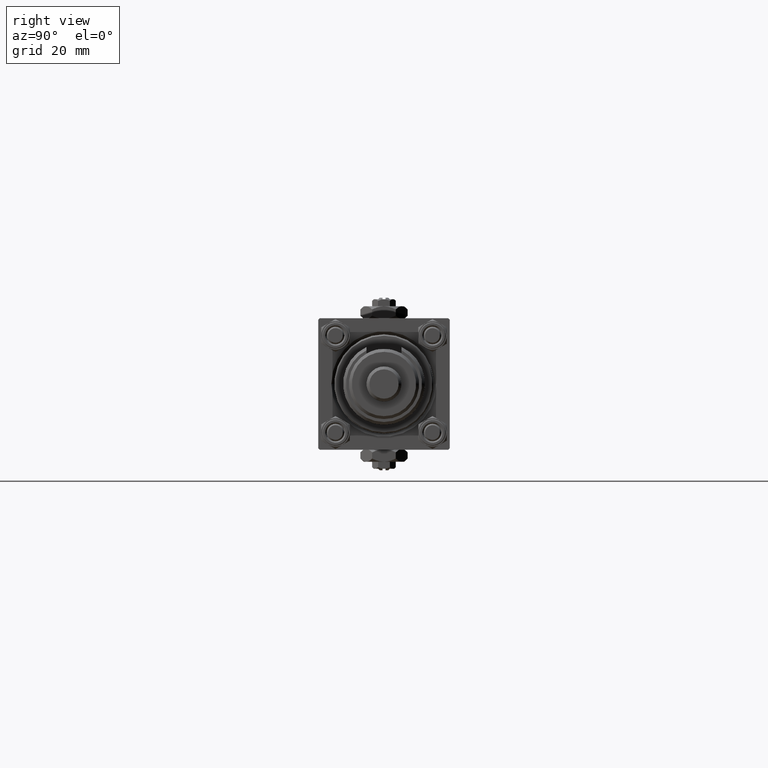
[diagram: clean part render]
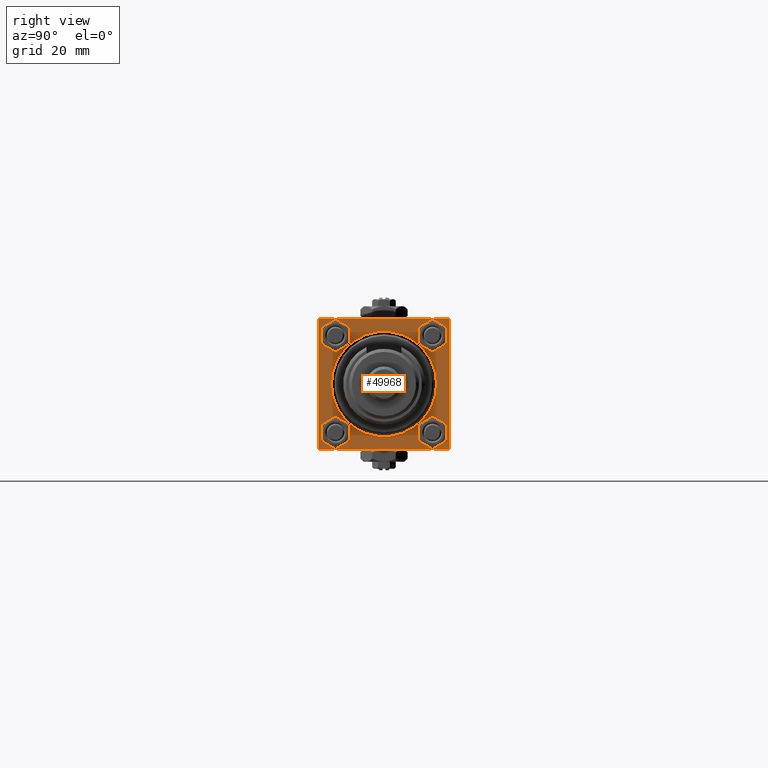
[diagram: same view with one face highlighted and labeled with its STEP entity id]
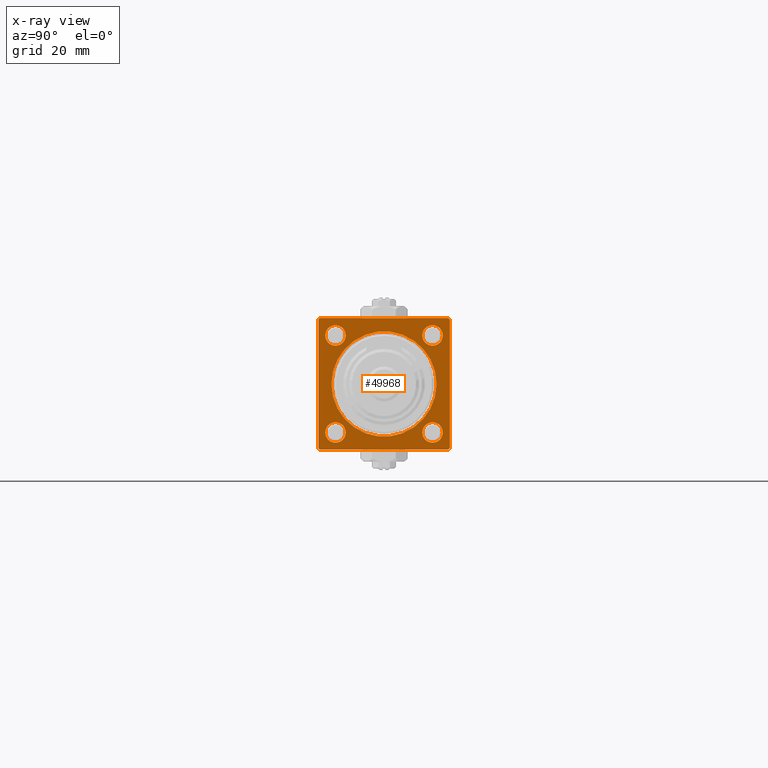
[diagram: x-ray of the same camera — body ghosted, the highlighted face saturated]
A machine part, right view. The second image highlights one B-rep face of the part: STEP entity #49968.
The next image is the same camera in x-ray: the body ghosted, the highlighted face saturated — about 0% of this face is hidden behind the body in this view.
In plain terms, the highlighted planar face has unit normal (-1, 0, -0).
Its self-contained STEP definition (entity closure, byte-faithful):
#96 = CARTESIAN_POINT ( 'NONE',  ( 123.0000000000000142, -22.49999999999999645, 22.00000000000000711 ) ) ;
#752 = VERTEX_POINT ( 'NONE', #96 ) ;
#872 = FACE_BOUND ( 'NONE', #11127, .T. ) ;
#1691 = FACE_OUTER_BOUND ( 'NONE', #51858, .T. ) ;
#1881 = LINE ( 'NONE', #11221, #50802 ) ;
#1892 = DIRECTION ( 'NONE',  ( -1.000000000000000000, 0.000000000000000000, -0.000000000000000000 ) ) ;
#2690 = CARTESIAN_POINT ( 'NONE',  ( 123.0000000000000142, 16.59999999999999787, 16.60000000000000497 ) ) ;
#2883 = DIRECTION ( 'NONE',  ( -1.000000000000000000, 0.000000000000000000, -0.000000000000000000 ) ) ;
#3333 = DIRECTION ( 'NONE',  ( 0.000000000000000000, 0.000000000000000000, 1.000000000000000000 ) ) ;
#3523 = EDGE_CURVE ( 'NONE', #26897, #5235, #34873, .T. ) ;
#4038 = EDGE_CURVE ( 'NONE', #47660, #8242, #40163, .T. ) ;
#4169 = VERTEX_POINT ( 'NONE', #43677 ) ;
#4258 = EDGE_CURVE ( 'NONE', #5235, #26897, #9392, .T. ) ;
#4907 = VECTOR ( 'NONE', #20621, 1000.000000000000000 ) ;
#5235 = VERTEX_POINT ( 'NONE', #6529 ) ;
#5428 = CARTESIAN_POINT ( 'NONE',  ( 123.0000000000000142, -16.60000000000000497, -20.10000000000003340 ) ) ;
#6525 = DIRECTION ( 'NONE',  ( -1.000000000000000000, 0.000000000000000000, -0.000000000000000000 ) ) ;
#6529 = CARTESIAN_POINT ( 'NONE',  ( 123.0000000000000142, 0.000000000000000000, -18.00000000000000355 ) ) ;
#7139 = CIRCLE ( 'NONE', #48488, 3.500000000000031086 ) ;
#7802 = VECTOR ( 'NONE', #9916, 1000.000000000000000 ) ;
#7950 = AXIS2_PLACEMENT_3D ( 'NONE', #10736, #36656, #49590 ) ;
#8242 = VERTEX_POINT ( 'NONE', #16964 ) ;
#8641 = ORIENTED_EDGE ( 'NONE', *, *, #16724, .F. ) ;
#9067 = CARTESIAN_POINT ( 'NONE',  ( 123.0000000000000142, 22.50000000000000355, -22.00000000000001066 ) ) ;
#9070 = DIRECTION ( 'NONE',  ( -1.000000000000000000, 0.000000000000000000, -0.000000000000000000 ) ) ;
#9392 = CIRCLE ( 'NONE', #12891, 18.00000000000000355 ) ;
#9420 = CARTESIAN_POINT ( 'NONE',  ( 123.0000000000000142, 0.000000000000000000, 0.000000000000000000 ) ) ;
#9916 = DIRECTION ( 'NONE',  ( 0.000000000000000000, -1.000000000000000000, -7.709882115452476934E-17 ) ) ;
#10057 = DIRECTION ( 'NONE',  ( -1.000000000000000000, 0.000000000000000000, -0.000000000000000000 ) ) ;
#10136 = DIRECTION ( 'NONE',  ( 0.000000000000000000, 0.000000000000000000, 1.000000000000000000 ) ) ;
#10172 = VERTEX_POINT ( 'NONE', #42233 ) ;
#10183 = LINE ( 'NONE', #30895, #7802 ) ;
#10297 = CARTESIAN_POINT ( 'NONE',  ( 123.0000000000000142, 21.99999999999996092, 22.50000000000000355 ) ) ;
#10736 = CARTESIAN_POINT ( 'NONE',  ( 123.0000000000000142, 16.59999999999999787, -16.60000000000000497 ) ) ;
#10933 = EDGE_CURVE ( 'NONE', #19801, #752, #18045, .T. ) ;
#11067 = AXIS2_PLACEMENT_3D ( 'NONE', #43956, #15564, #32395 ) ;
#11127 = EDGE_LOOP ( 'NONE', ( #22269, #50768 ) ) ;
#11221 = CARTESIAN_POINT ( 'NONE',  ( 123.0000000000000142, -21.99999999999999645, -22.50000000000000000 ) ) ;
#11420 = CIRCLE ( 'NONE', #45782, 3.499999999999989342 ) ;
#11570 = ORIENTED_EDGE ( 'NONE', *, *, #10933, .T. ) ;
#12137 = DIRECTION ( 'NONE',  ( -1.000000000000000000, 0.000000000000000000, -0.000000000000000000 ) ) ;
#12528 = EDGE_CURVE ( 'NONE', #36139, #15782, #10183, .T. ) ;
#12891 = AXIS2_PLACEMENT_3D ( 'NONE', #23285, #10057, #31037 ) ;
#13203 = VECTOR ( 'NONE', #42433, 1000.000000000000000 ) ;
#13394 = EDGE_CURVE ( 'NONE', #8242, #47660, #34363, .T. ) ;
#13633 = VECTOR ( 'NONE', #38409, 1000.000000000000000 ) ;
#14414 = CIRCLE ( 'NONE', #27609, 3.499999999999989342 ) ;
#14567 = DIRECTION ( 'NONE',  ( 0.000000000000000000, 0.000000000000000000, 1.000000000000000000 ) ) ;
#14708 = ORIENTED_EDGE ( 'NONE', *, *, #31905, .T. ) ;
#15564 = DIRECTION ( 'NONE',  ( -1.000000000000000000, 0.000000000000000000, -0.000000000000000000 ) ) ;
#15591 = VECTOR ( 'NONE', #41746, 1000.000000000000000 ) ;
#15782 = VERTEX_POINT ( 'NONE', #28952 ) ;
#15901 = EDGE_CURVE ( 'NONE', #36139, #48087, #38034, .T. ) ;
#16577 = ORIENTED_EDGE ( 'NONE', *, *, #39883, .T. ) ;
#16724 = EDGE_CURVE ( 'NONE', #43449, #48087, #43246, .T. ) ;
#16881 = EDGE_CURVE ( 'NONE', #46097, #4169, #11420, .T. ) ;
#16910 = EDGE_CURVE ( 'NONE', #28174, #52222, #53700, .T. ) ;
#16912 = EDGE_LOOP ( 'NONE', ( #35969, #29538 ) ) ;
#16964 = CARTESIAN_POINT ( 'NONE',  ( 123.0000000000000142, 16.59999999999999787, -13.09999999999997300 ) ) ;
#17130 = VERTEX_POINT ( 'NONE', #21434 ) ;
#17704 = DIRECTION ( 'NONE',  ( -0.000000000000000000, 0.000000000000000000, 1.000000000000000000 ) ) ;
#18045 = LINE ( 'NONE', #43118, #44660 ) ;
#18244 = PLANE ( 'NONE',  #42375 ) ;
#18711 = DIRECTION ( 'NONE',  ( -1.000000000000000000, 0.000000000000000000, -0.000000000000000000 ) ) ;
#18981 = CARTESIAN_POINT ( 'NONE',  ( 123.0000000000000142, -16.59999999999999787, 16.59999999999999787 ) ) ;
#19233 = DIRECTION ( 'NONE',  ( 0.000000000000000000, 0.7071067811865425767, -0.7071067811865525687 ) ) ;
#19772 = VERTEX_POINT ( 'NONE', #5428 ) ;
#19801 = VERTEX_POINT ( 'NONE', #39592 ) ;
#20238 = EDGE_LOOP ( 'NONE', ( #51083, #45223 ) ) ;
#20621 = DIRECTION ( 'NONE',  ( 0.000000000000000000, -1.000000000000000000, -2.312964634635742957E-16 ) ) ;
#20685 = CARTESIAN_POINT ( 'NONE',  ( 123.0000000000000142, 22.00000000000000355, -22.49999999999999645 ) ) ;
#21181 = AXIS2_PLACEMENT_3D ( 'NONE', #18981, #18711, #14567 ) ;
#21434 = CARTESIAN_POINT ( 'NONE',  ( 123.0000000000000142, -16.60000000000000497, -13.09999999999997300 ) ) ;
#21490 = DIRECTION ( 'NONE',  ( -0.000000000000000000, 0.7071067811865573427, 0.7071067811865378028 ) ) ;
#21555 = AXIS2_PLACEMENT_3D ( 'NONE', #52288, #6525, #23348 ) ;
#22001 = VECTOR ( 'NONE', #21490, 1000.000000000000000 ) ;
#22269 = ORIENTED_EDGE ( 'NONE', *, *, #28867, .T. ) ;
#22454 = DIRECTION ( 'NONE',  ( -0.000000000000000000, -0.7071067811865573427, -0.7071067811865378028 ) ) ;
#23285 = CARTESIAN_POINT ( 'NONE',  ( 123.0000000000000142, 0.000000000000000000, 0.000000000000000000 ) ) ;
#23348 = DIRECTION ( 'NONE',  ( 0.000000000000000000, 0.000000000000000000, 1.000000000000000000 ) ) ;
#24400 = CARTESIAN_POINT ( 'NONE',  ( 123.0000000000000142, -16.60000000000000497, -16.60000000000000497 ) ) ;
#24666 = LINE ( 'NONE', #24948, #15591 ) ;
#24948 = CARTESIAN_POINT ( 'NONE',  ( 123.0000000000000142, -22.49999999999999645, 22.49999999999999289 ) ) ;
#25893 = DIRECTION ( 'NONE',  ( 0.000000000000000000, 0.000000000000000000, 1.000000000000000000 ) ) ;
#26788 = FACE_BOUND ( 'NONE', #45283, .T. ) ;
#26897 = VERTEX_POINT ( 'NONE', #54267 ) ;
#27609 = AXIS2_PLACEMENT_3D ( 'NONE', #39376, #42482, #10136 ) ;
#28174 = VERTEX_POINT ( 'NONE', #54209 ) ;
#28621 = CARTESIAN_POINT ( 'NONE',  ( 123.0000000000000142, 22.50000000000000355, 22.50000000000000355 ) ) ;
#28867 = EDGE_CURVE ( 'NONE', #4169, #46097, #14414, .T. ) ;
#28901 = LINE ( 'NONE', #28621, #4907 ) ;
#28952 = CARTESIAN_POINT ( 'NONE',  ( 123.0000000000000142, -21.99999999999998224, -22.50000000000000000 ) ) ;
#29538 = ORIENTED_EDGE ( 'NONE', *, *, #16910, .T. ) ;
#30160 = LINE ( 'NONE', #46402, #13633 ) ;
#30607 = EDGE_CURVE ( 'NONE', #17130, #19772, #33873, .T. ) ;
#30895 = CARTESIAN_POINT ( 'NONE',  ( 123.0000000000000142, 22.50000000000000355, -22.49999999999999645 ) ) ;
#31037 = DIRECTION ( 'NONE',  ( 0.000000000000000000, 0.000000000000000000, 1.000000000000000000 ) ) ;
#31905 = EDGE_CURVE ( 'NONE', #43449, #52888, #30160, .T. ) ;
#32395 = DIRECTION ( 'NONE',  ( 0.000000000000000000, 0.000000000000000000, 1.000000000000000000 ) ) ;
#33205 = AXIS2_PLACEMENT_3D ( 'NONE', #24400, #2883, #49464 ) ;
#33873 = CIRCLE ( 'NONE', #21555, 3.500000000000031086 ) ;
#34363 = CIRCLE ( 'NONE', #7950, 3.500000000000031086 ) ;
#34447 = CARTESIAN_POINT ( 'NONE',  ( 123.0000000000000142, 22.50000000000000355, 22.50000000000000355 ) ) ;
#34485 = ORIENTED_EDGE ( 'NONE', *, *, #30607, .T. ) ;
#34873 = CIRCLE ( 'NONE', #11067, 18.00000000000000355 ) ;
#35797 = DIRECTION ( 'NONE',  ( 0.000000000000000000, 0.000000000000000000, 1.000000000000000000 ) ) ;
#35969 = ORIENTED_EDGE ( 'NONE', *, *, #53221, .T. ) ;
#36139 = VERTEX_POINT ( 'NONE', #20685 ) ;
#36393 = EDGE_CURVE ( 'NONE', #52888, #19801, #28901, .T. ) ;
#36656 = DIRECTION ( 'NONE',  ( -1.000000000000000000, 0.000000000000000000, -0.000000000000000000 ) ) ;
#36726 = CIRCLE ( 'NONE', #33205, 3.500000000000031086 ) ;
#36737 = CARTESIAN_POINT ( 'NONE',  ( 123.0000000000000142, 16.59999999999999787, -20.10000000000003340 ) ) ;
#37539 = CARTESIAN_POINT ( 'NONE',  ( 123.0000000000000142, 22.50000000000000355, 21.99999999999997513 ) ) ;
#38034 = LINE ( 'NONE', #9067, #22001 ) ;
#38409 = DIRECTION ( 'NONE',  ( 0.000000000000000000, -0.7071067811865573427, 0.7071067811865378028 ) ) ;
#38650 = FACE_BOUND ( 'NONE', #46651, .T. ) ;
#38928 = FACE_BOUND ( 'NONE', #16912, .T. ) ;
#39376 = CARTESIAN_POINT ( 'NONE',  ( 123.0000000000000142, 16.59999999999999787, 16.60000000000000497 ) ) ;
#39558 = EDGE_CURVE ( 'NONE', #10172, #15782, #1881, .T. ) ;
#39592 = CARTESIAN_POINT ( 'NONE',  ( 123.0000000000000142, -21.99999999999998224, 22.49999999999999289 ) ) ;
#39671 = CARTESIAN_POINT ( 'NONE',  ( 123.0000000000000142, -16.59999999999999787, 13.09999999999996589 ) ) ;
#39883 = EDGE_CURVE ( 'NONE', #752, #10172, #24666, .T. ) ;
#39975 = EDGE_CURVE ( 'NONE', #19772, #17130, #36726, .T. ) ;
#40021 = ORIENTED_EDGE ( 'NONE', *, *, #39975, .T. ) ;
#40163 = CIRCLE ( 'NONE', #47194, 3.500000000000031086 ) ;
#40861 = CARTESIAN_POINT ( 'NONE',  ( 123.0000000000000142, 16.59999999999999787, 20.09999999999999432 ) ) ;
#41134 = ORIENTED_EDGE ( 'NONE', *, *, #12528, .F. ) ;
#41746 = DIRECTION ( 'NONE',  ( 0.000000000000000000, 0.000000000000000000, -1.000000000000000000 ) ) ;
#42233 = CARTESIAN_POINT ( 'NONE',  ( 123.0000000000000142, -22.49999999999999645, -21.99999999999997868 ) ) ;
#42375 = AXIS2_PLACEMENT_3D ( 'NONE', #9420, #51320, #17704 ) ;
#42433 = DIRECTION ( 'NONE',  ( 0.000000000000000000, 0.000000000000000000, -1.000000000000000000 ) ) ;
#42482 = DIRECTION ( 'NONE',  ( -1.000000000000000000, 0.000000000000000000, -0.000000000000000000 ) ) ;
#43118 = CARTESIAN_POINT ( 'NONE',  ( 123.0000000000000142, -22.49999999999999645, 22.00000000000000711 ) ) ;
#43246 = LINE ( 'NONE', #34447, #13203 ) ;
#43449 = VERTEX_POINT ( 'NONE', #37539 ) ;
#43677 = CARTESIAN_POINT ( 'NONE',  ( 123.0000000000000142, 16.59999999999999787, 13.10000000000001386 ) ) ;
#43956 = CARTESIAN_POINT ( 'NONE',  ( 123.0000000000000142, 0.000000000000000000, 0.000000000000000000 ) ) ;
#44660 = VECTOR ( 'NONE', #22454, 1000.000000000000000 ) ;
#44934 = CARTESIAN_POINT ( 'NONE',  ( 123.0000000000000142, -16.59999999999999787, 16.59999999999999787 ) ) ;
#45223 = ORIENTED_EDGE ( 'NONE', *, *, #3523, .T. ) ;
#45283 = EDGE_LOOP ( 'NONE', ( #48032, #47190 ) ) ;
#45782 = AXIS2_PLACEMENT_3D ( 'NONE', #2690, #1892, #35797 ) ;
#46097 = VERTEX_POINT ( 'NONE', #40861 ) ;
#46402 = CARTESIAN_POINT ( 'NONE',  ( 123.0000000000000142, 21.99999999999996092, 22.50000000000000355 ) ) ;
#46651 = EDGE_LOOP ( 'NONE', ( #40021, #34485 ) ) ;
#46829 = CARTESIAN_POINT ( 'NONE',  ( 123.0000000000000142, 16.59999999999999787, -16.60000000000000497 ) ) ;
#47190 = ORIENTED_EDGE ( 'NONE', *, *, #13394, .T. ) ;
#47194 = AXIS2_PLACEMENT_3D ( 'NONE', #46829, #9070, #25893 ) ;
#47660 = VERTEX_POINT ( 'NONE', #36737 ) ;
#48032 = ORIENTED_EDGE ( 'NONE', *, *, #4038, .T. ) ;
#48087 = VERTEX_POINT ( 'NONE', #48187 ) ;
#48187 = CARTESIAN_POINT ( 'NONE',  ( 123.0000000000000142, 22.50000000000000355, -21.99999999999999645 ) ) ;
#48488 = AXIS2_PLACEMENT_3D ( 'NONE', #44934, #12137, #3333 ) ;
#48962 = ORIENTED_EDGE ( 'NONE', *, *, #39558, .T. ) ;
#49464 = DIRECTION ( 'NONE',  ( 0.000000000000000000, 0.000000000000000000, 1.000000000000000000 ) ) ;
#49590 = DIRECTION ( 'NONE',  ( 0.000000000000000000, 0.000000000000000000, 1.000000000000000000 ) ) ;
#49968 = ADVANCED_FACE ( 'NONE', ( #38650, #26788, #872, #38928, #52397, #1691 ), #18244, .F. ) ;
#50768 = ORIENTED_EDGE ( 'NONE', *, *, #16881, .T. ) ;
#50802 = VECTOR ( 'NONE', #19233, 999.9999999999998863 ) ;
#51083 = ORIENTED_EDGE ( 'NONE', *, *, #4258, .T. ) ;
#51320 = DIRECTION ( 'NONE',  ( -1.000000000000000000, 0.000000000000000000, -0.000000000000000000 ) ) ;
#51858 = EDGE_LOOP ( 'NONE', ( #16577, #48962, #41134, #52070, #8641, #14708, #54208, #11570 ) ) ;
#52070 = ORIENTED_EDGE ( 'NONE', *, *, #15901, .T. ) ;
#52222 = VERTEX_POINT ( 'NONE', #39671 ) ;
#52288 = CARTESIAN_POINT ( 'NONE',  ( 123.0000000000000142, -16.60000000000000497, -16.60000000000000497 ) ) ;
#52397 = FACE_BOUND ( 'NONE', #20238, .T. ) ;
#52888 = VERTEX_POINT ( 'NONE', #10297 ) ;
#53221 = EDGE_CURVE ( 'NONE', #52222, #28174, #7139, .T. ) ;
#53700 = CIRCLE ( 'NONE', #21181, 3.500000000000031086 ) ;
#54208 = ORIENTED_EDGE ( 'NONE', *, *, #36393, .T. ) ;
#54209 = CARTESIAN_POINT ( 'NONE',  ( 123.0000000000000142, -16.59999999999999787, 20.10000000000002629 ) ) ;
#54267 = CARTESIAN_POINT ( 'NONE',  ( 123.0000000000000142, 2.204364238465235822E-15, 18.00000000000000355 ) ) ;